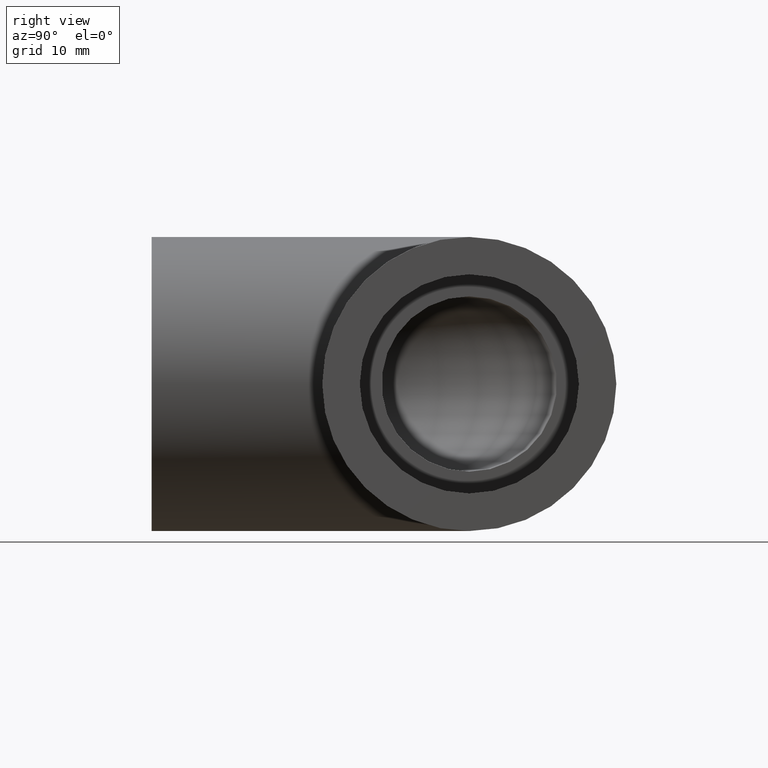
[diagram: clean part render]
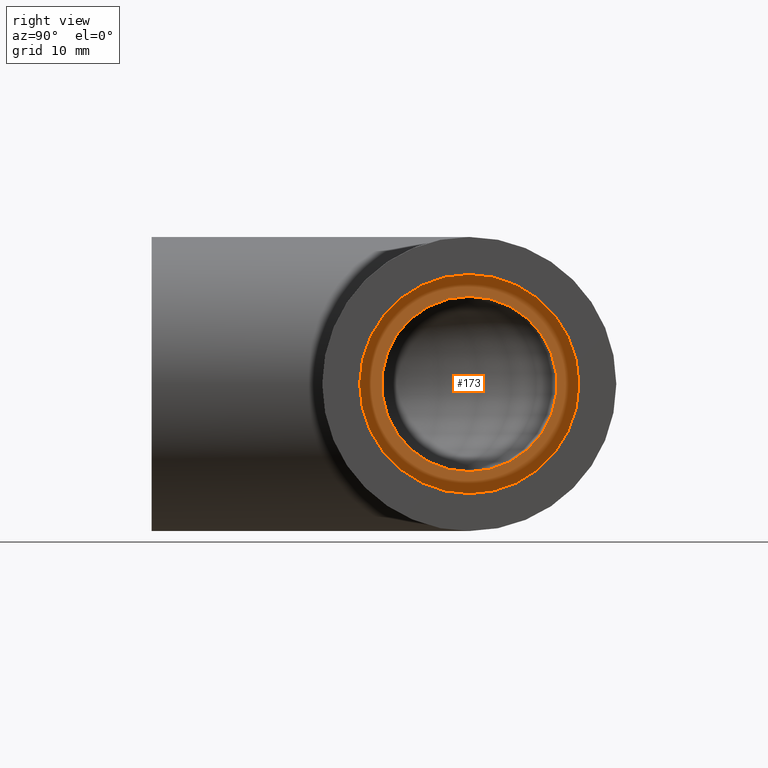
[diagram: same view with one face highlighted and labeled with its STEP entity id]
A machine part, right view. The second image highlights one B-rep face of the part: STEP entity #173.
In plain terms, the highlighted planar face has unit normal (1, 0, 0).
Its self-contained STEP definition (entity closure, byte-faithful):
#20=PLANE('',#198);
#30=FACE_BOUND('',#66,.T.);
#44=FACE_OUTER_BOUND('',#65,.T.);
#65=EDGE_LOOP('',(#140));
#66=EDGE_LOOP('',(#141));
#85=CIRCLE('',#190,7.4524);
#88=CIRCLE('',#196,9.3155);
#100=VERTEX_POINT('',#289);
#103=VERTEX_POINT('',#298);
#115=EDGE_CURVE('',#100,#100,#85,.T.);
#118=EDGE_CURVE('',#103,#103,#88,.T.);
#140=ORIENTED_EDGE('',*,*,#118,.F.);
#141=ORIENTED_EDGE('',*,*,#115,.T.);
#173=ADVANCED_FACE('',(#44,#30),#20,.T.);
#190=AXIS2_PLACEMENT_3D('',#290,#229,#230);
#196=AXIS2_PLACEMENT_3D('',#299,#241,#242);
#198=AXIS2_PLACEMENT_3D('',#302,#245,#246);
#229=DIRECTION('center_axis',(-1.,0.,0.));
#230=DIRECTION('ref_axis',(0.,0.,1.));
#241=DIRECTION('center_axis',(-1.,0.,0.));
#242=DIRECTION('ref_axis',(0.,0.,1.));
#245=DIRECTION('center_axis',(1.,0.,0.));
#246=DIRECTION('ref_axis',(0.,0.,-1.));
#289=CARTESIAN_POINT('',(11.5,9.12655780596574E-16,-7.4524));
#290=CARTESIAN_POINT('Origin',(11.5,0.,0.));
#298=CARTESIAN_POINT('',(11.5,1.14081972574572E-15,-9.3155));
#299=CARTESIAN_POINT('Origin',(11.5,0.,0.));
#302=CARTESIAN_POINT('Origin',(11.5,0.,9.50683104788098E-17));